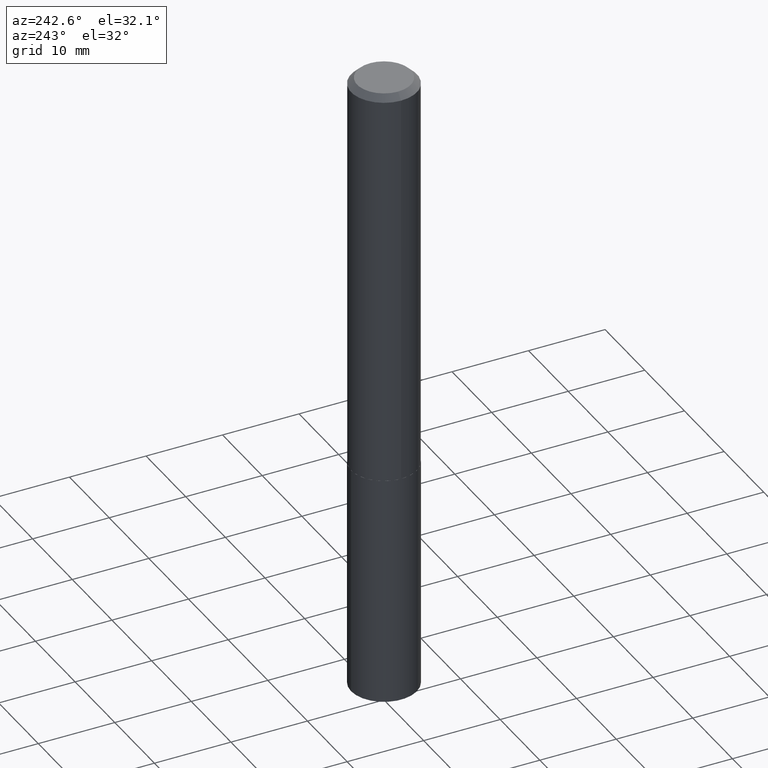
[diagram: clean part render]
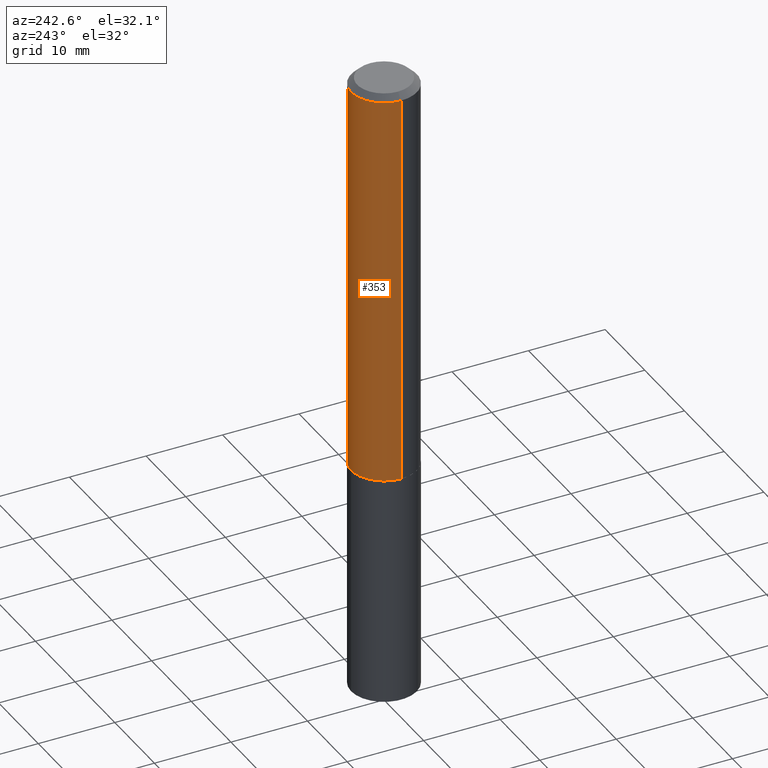
[diagram: same view with one face highlighted and labeled with its STEP entity id]
A machine part, auxiliary view. The second image highlights one B-rep face of the part: STEP entity #353.
In plain terms, the highlighted cylindrical surface (partial cylindrical patch) has radius 4.3002 mm, axis along (-0, 0, 1).
Its self-contained STEP definition (entity closure, byte-faithful):
#1 = CARTESIAN_POINT ( 'NONE',  ( -0.1693000000000002836, -6.025814112298998676E-15, -2.070400000000000240 ) ) ;
#15 = DIRECTION ( 'NONE',  ( 1.000000000000000000, -6.982962677686264344E-15, 0.000000000000000000 ) ) ;
#52 = CARTESIAN_POINT ( 'NONE',  ( 0.1693000000000002836, -8.410978545273137094E-15, -2.070400000000000240 ) ) ;
#63 = ORIENTED_EDGE ( 'NONE', *, *, #121, .T. ) ;
#65 = AXIS2_PLACEMENT_3D ( 'NONE', #84, #345, #15 ) ;
#67 = CARTESIAN_POINT ( 'NONE',  ( 7.642090019328600035E-31, -1.091087918388489897E-16, -0.03125000000000020123 ) ) ;
#84 = CARTESIAN_POINT ( 'NONE',  ( 5.063098616325708028E-29, -7.228762963940850701E-15, -2.070400000000000240 ) ) ;
#85 = ORIENTED_EDGE ( 'NONE', *, *, #88, .F. ) ;
#88 = EDGE_CURVE ( 'NONE', #358, #375, #380, .T. ) ;
#94 = CARTESIAN_POINT ( 'NONE',  ( -0.1693000000000000338, -2.465987026247997876E-15, -0.03125000000000020123 ) ) ;
#97 = DIRECTION ( 'NONE',  ( 1.000000000000000000, -6.982962677686266711E-15, 4.876176775795935793E-29 ) ) ;
#99 = VECTOR ( 'NONE', #187, 39.37007874015748143 ) ;
#104 = EDGE_LOOP ( 'NONE', ( #63, #118, #130, #85 ) ) ;
#105 = FACE_OUTER_BOUND ( 'NONE', #104, .T. ) ;
#118 = ORIENTED_EDGE ( 'NONE', *, *, #305, .T. ) ;
#121 = EDGE_CURVE ( 'NONE', #358, #205, #192, .T. ) ;
#130 = ORIENTED_EDGE ( 'NONE', *, *, #325, .F. ) ;
#131 = DIRECTION ( 'NONE',  ( -2.445468806185136597E-29, 3.491481338843145583E-15, 1.000000000000000000 ) ) ;
#148 = CARTESIAN_POINT ( 'NONE',  ( 0.1693000000000001448, -1.182215581332285999E-15, 8.255367281422526831E-30 ) ) ;
#187 = DIRECTION ( 'NONE',  ( -2.445468806185136877E-29, 3.491481338843145188E-15, 1.000000000000000000 ) ) ;
#192 = CIRCLE ( 'NONE', #65, 0.1693000000000002836 ) ;
#200 = CIRCLE ( 'NONE', #287, 0.1693000000000000338 ) ;
#205 = VERTEX_POINT ( 'NONE', #1 ) ;
#207 = VECTOR ( 'NONE', #348, 39.37007874015748143 ) ;
#208 = VERTEX_POINT ( 'NONE', #94 ) ;
#221 = AXIS2_PLACEMENT_3D ( 'NONE', #245, #366, #97 ) ;
#245 = CARTESIAN_POINT ( 'NONE',  ( 0.000000000000000000, 0.000000000000000000, 0.000000000000000000 ) ) ;
#247 = CARTESIAN_POINT ( 'NONE',  ( -0.1693000000000001448, 1.202948851641850644E-15, -8.327757107801562718E-30 ) ) ;
#277 = CYLINDRICAL_SURFACE ( 'NONE', #221, 0.1693000000000001448 ) ;
#283 = DIRECTION ( 'NONE',  ( 1.000000000000000000, -6.982962677686265922E-15, 0.000000000000000000 ) ) ;
#287 = AXIS2_PLACEMENT_3D ( 'NONE', #67, #131, #283 ) ;
#304 = LINE ( 'NONE', #247, #99 ) ;
#305 = EDGE_CURVE ( 'NONE', #205, #208, #304, .T. ) ;
#325 = EDGE_CURVE ( 'NONE', #375, #208, #200, .T. ) ;
#345 = DIRECTION ( 'NONE',  ( -2.445468806185136597E-29, 3.491481338843145583E-15, 1.000000000000000000 ) ) ;
#347 = CARTESIAN_POINT ( 'NONE',  ( 0.1693000000000000338, -1.291324373171134113E-15, -0.03125000000000020123 ) ) ;
#348 = DIRECTION ( 'NONE',  ( -2.445468806185136877E-29, 3.491481338843145188E-15, 1.000000000000000000 ) ) ;
#353 = ADVANCED_FACE ( 'NONE', ( #105 ), #277, .T. ) ;
#358 = VERTEX_POINT ( 'NONE', #52 ) ;
#366 = DIRECTION ( 'NONE',  ( -2.445468806185136597E-29, 3.491481338843145583E-15, 1.000000000000000000 ) ) ;
#375 = VERTEX_POINT ( 'NONE', #347 ) ;
#380 = LINE ( 'NONE', #148, #207 ) ;